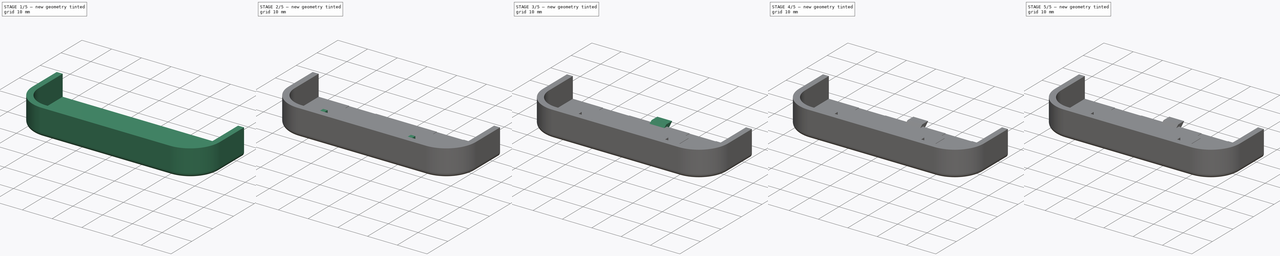
[diagram: build sequence overview — one tinted view per stage of 5, left to right]
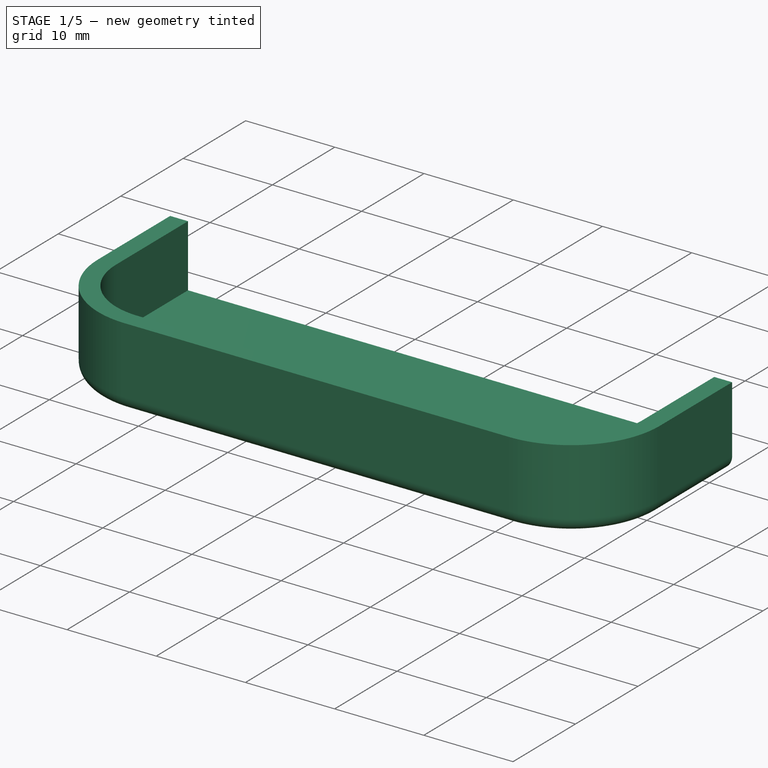
[diagram: stage 1 of 5 — iso view after this stage's code; geometry added in this stage tinted green]
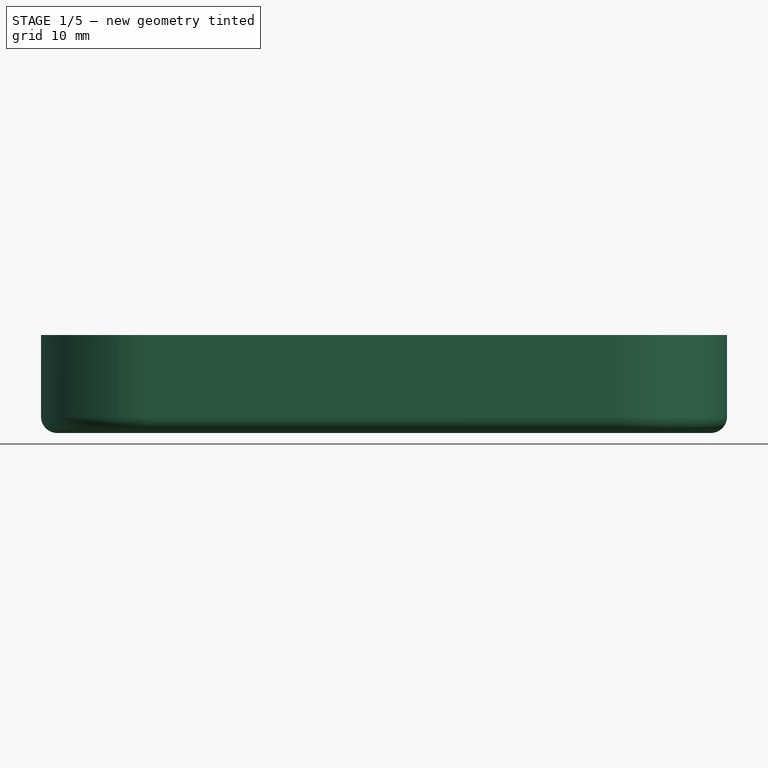
[diagram: stage 1 of 5 — front view after this stage's code; geometry added in this stage tinted green]
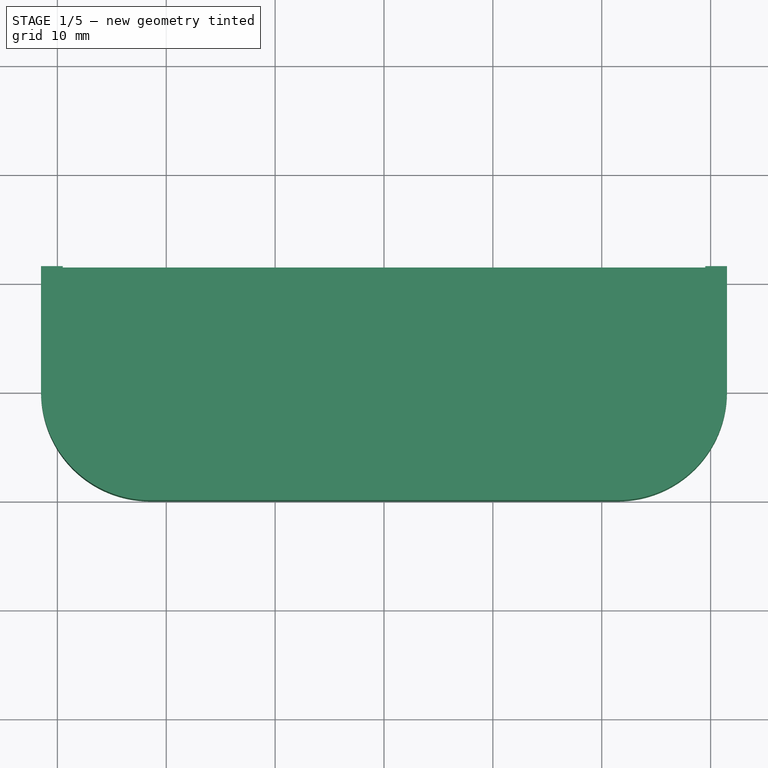
[diagram: stage 1 of 5 — top view after this stage's code; geometry added in this stage tinted green]
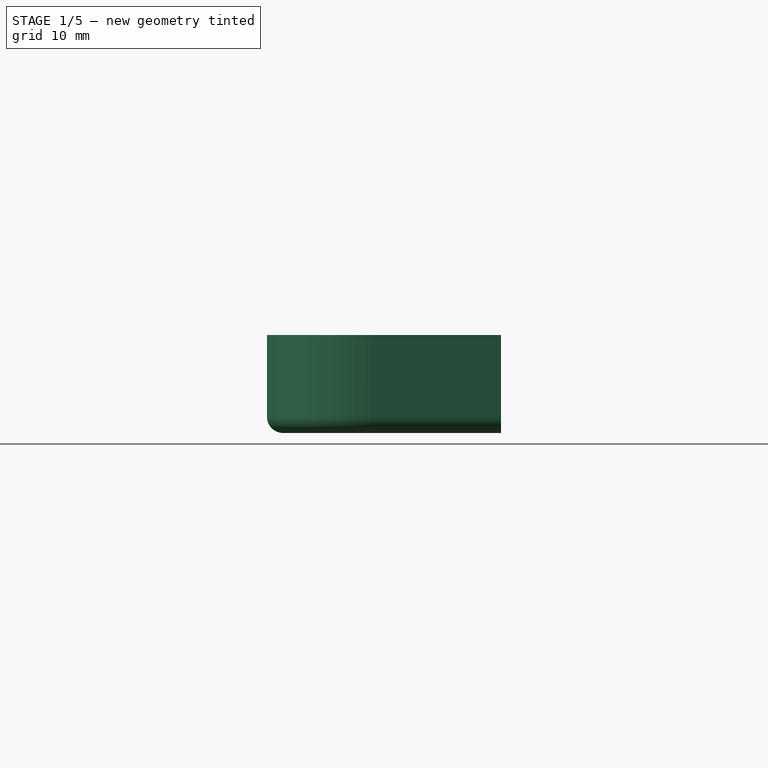
[diagram: stage 1 of 5 — right view after this stage's code; geometry added in this stage tinted green]
FCSTD DOCUMENT  (FreeCAD 0.19.4R1_voidlinux)
Label: back_lid
License: All rights reserved
LicenseURL: http://en.wikipedia.org/wiki/All_rights_reserved
objects: Sketcher::SketchObject×11, PartDesign::Pad×6, PartDesign::Pocket×4, PartDesign::Fillet×4, PartDesign::Point×2, PartDesign::Mirrored×1, Part::Part2DObjectPython×1, Part::Extrusion×1, PartDesign::LinearPattern×1, PartDesign::Body×1, PartDesign::CoordinateSystem×1, App::Part×1
note: 47 computed .brp shape members not serialized (recipe doc carries the construction recipe); baked Part::Feature solids carry a one-line shape summary decoded from their .brp

FEATURE [Sketcher::SketchObject] Sketch
  FullyConstrained = true
  MapMode = 5
  Support = -> [XY_Plane]
  sketch-geometry (6):
    g0: LineSegment StartX=-31.5 StartY=21.5 StartZ=0 EndX=-31.5 EndY=10 EndZ=0
    g1: LineSegment StartX=-21.5 StartY=0 StartZ=0 EndX=21.5 EndY=0 EndZ=0
    g2: LineSegment StartX=31.5 StartY=10 StartZ=0 EndX=31.5 EndY=21.5 EndZ=0
    g3: ArcOfCircle CenterX=-21.5 CenterY=10 CenterZ=0 NormalX=0 NormalY=0 NormalZ=1 AngleXU=0 Radius=10 StartAngle=3.14159 EndAngle=4.71239
    g4: ArcOfCircle CenterX=21.5 CenterY=10 CenterZ=0 NormalX=0 NormalY=0 NormalZ=1 AngleXU=0 Radius=10 StartAngle=4.71239 EndAngle=6.28319
    g5: LineSegment StartX=-31.5 StartY=21.5 StartZ=0 EndX=31.5 EndY=21.5 EndZ=0
  constraints (16):
    c: Vertical(g2)
    c: Tangent(g0,g3) = -1.5708
    c: Tangent(g1,g3) = -1.5708
    c: Tangent(g2,g4) = -1.5708
    c: Tangent(g1,g4) = -1.5708
    c: Equal(g2,g0)
    c: Equal(g4,g3)
    c: Vertical(g0)
    c: PointOnObject(g1,g-1)
    c: DistanceY(g1,g0) = 21.5
    c: Distance(g0,g0) = 11.5
    c: DistanceX(g0,g2) = 63
    c: Coincident(g5,g0)
    c: Coincident(g5,g2)
    c: Symmetric(g1,g1,g-2)
    c: Radius(g3) = 10
FEATURE [PartDesign::Pad] Pad  label="base"
  Direction = (1,1,1)
  Length = 9
  Length2 = 100
  Profile = -> Sketch
  Type = 0
FEATURE [Sketcher::SketchObject] Sketch001
  ExternalGeometry = -> [Pad]
  FullyConstrained = true
  MapMode = 5
  Placement = pos=(0,0,9) rot=(0,0,1;0rad)
  Support = -> [Pad]
  sketch-geometry (8):
    g0: LineSegment StartX=-29.5 StartY=21.5 StartZ=0 EndX=-29.5 EndY=10 EndZ=0
    g1: LineSegment StartX=29.5 StartY=21.5 StartZ=0 EndX=29.5 EndY=10 EndZ=0
    g2: LineSegment StartX=-21.5 StartY=2 StartZ=0 EndX=21.5 EndY=2 EndZ=0
    g3: LineSegment StartX=-31.5 StartY=21.5 StartZ=0 EndX=-29.5 EndY=21.5 EndZ=0
    g4: LineSegment StartX=-21.5 StartY=2 StartZ=0 EndX=-21.5 EndY=0 EndZ=0
    g5: ArcOfCircle CenterX=-21.5 CenterY=10 CenterZ=0 NormalX=0 NormalY=0 NormalZ=1 AngleXU=0 Radius=8 StartAngle=3.14159 EndAngle=4.71239
    g6: ArcOfCircle CenterX=21.5 CenterY=10 CenterZ=0 NormalX=0 NormalY=0 NormalZ=1 AngleXU=0 Radius=8 StartAngle=4.71239 EndAngle=6.28319
    g7: LineSegment StartX=-29.5 StartY=21.5 StartZ=0 EndX=29.5 EndY=21.5 EndZ=0
  constraints (20):
    c: PointOnObject(g0,g-3)
    c: Vertical(g0)
    c: PointOnObject(g1,g-3)
    c: Vertical(g1)
    c: Horizontal(g2)
    c: Equal(g0,g-4)
    c: Equal(g2,g-6)
    c: Equal(g1,g-8)
    c: Coincident(g3,g-4)
    c: Coincident(g3,g0)
    c: Distance(g3,g0) = 2
    c: Coincident(g4,g-6)
    c: Tangent(g2,g5) = -1.5708
    c: Tangent(g0,g5) = -1.5708
    c: Coincident(g2,g4)
    c: Tangent(g1,g6) = 1.5708
    c: Tangent(g2,g6) = -1.5708
    c: Coincident(g7,g0)
    c: Coincident(g7,g1)
    c: Vertical(g4)
FEATURE [PartDesign::Pocket] Pocket  label="walls"
  BaseFeature = -> Pad
  Length = 7
  Length2 = 100
  Profile = -> Sketch001
  Type = 0
FEATURE [PartDesign::Fillet] Fillet
  Base = -> Pocket [Edge3,Edge13,Edge15,Edge16,Edge17]
  BaseFeature = -> Pocket
  Radius = 1.5
  SupportTransform = false
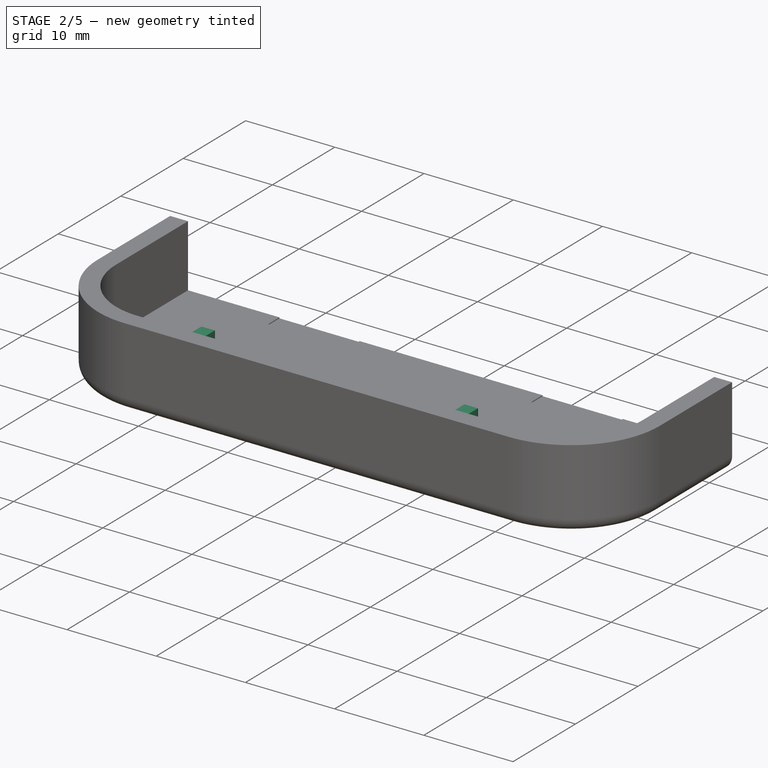
[diagram: stage 2 of 5 — iso view after this stage's code; geometry added in this stage tinted green]
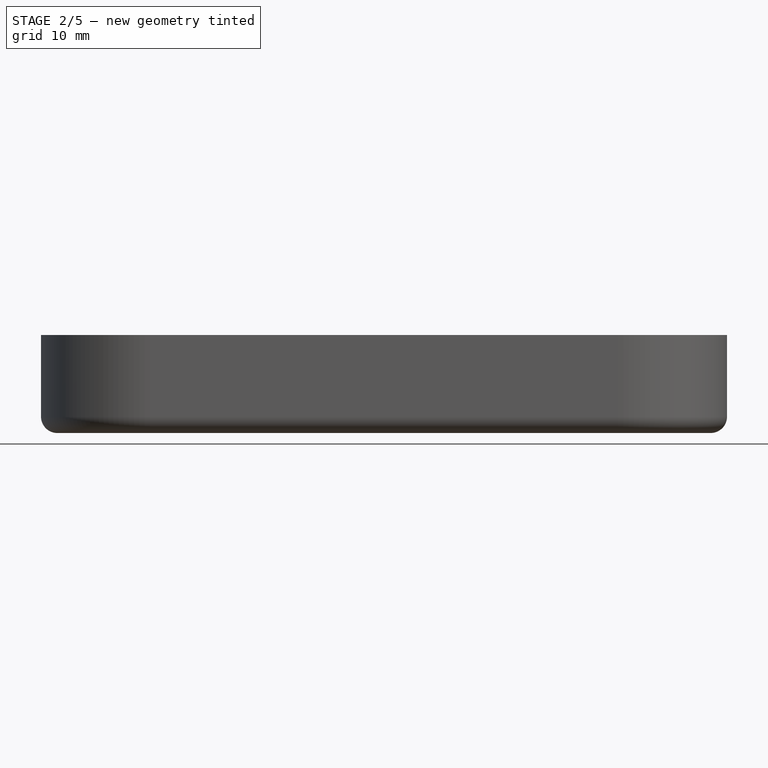
[diagram: stage 2 of 5 — front view after this stage's code; geometry added in this stage tinted green]
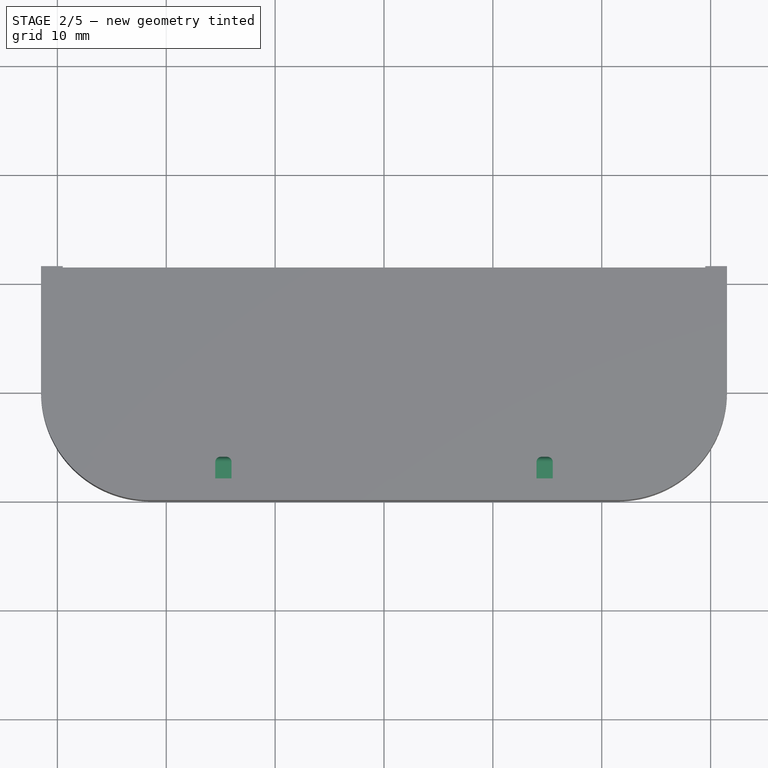
[diagram: stage 2 of 5 — top view after this stage's code; geometry added in this stage tinted green]
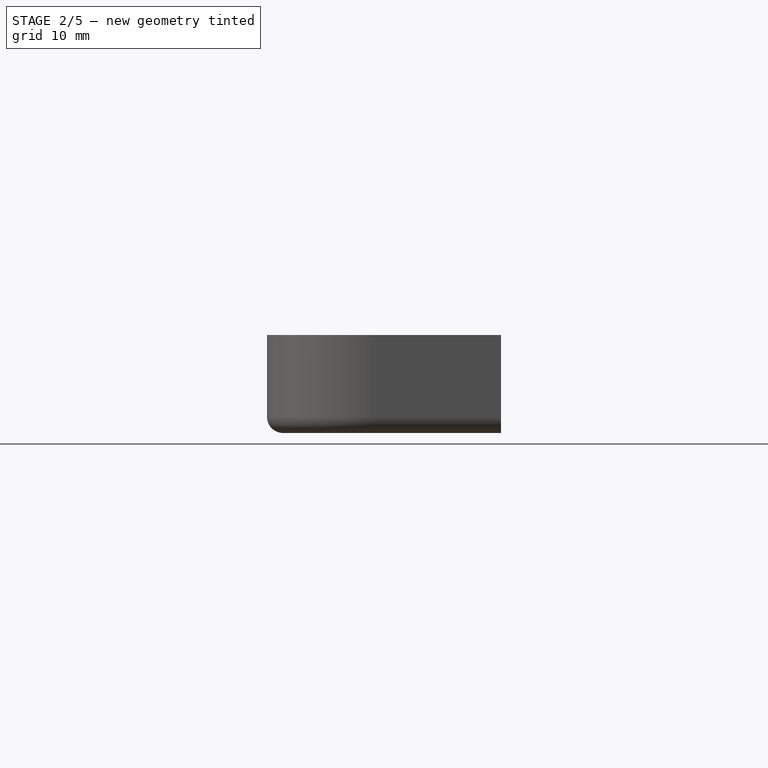
[diagram: stage 2 of 5 — right view after this stage's code; geometry added in this stage tinted green]
FEATURE [Sketcher::SketchObject] Sketch002
  ExternalGeometry = -> [Fillet]
  FullyConstrained = true
  MapMode = 5
  Placement = pos=(0,2,0) rot=(0,0.707107,0.707107;3.14159rad)
  Support = -> [Fillet]
  sketch-geometry (4):
    g0: LineSegment StartX=-15.5 StartY=7.4 StartZ=0 EndX=-14 EndY=7.4 EndZ=0
    g1: LineSegment StartX=-14 StartY=7.4 StartZ=0 EndX=-14 EndY=8.9 EndZ=0
    g2: LineSegment StartX=-14 StartY=8.9 StartZ=0 EndX=-15.5 EndY=8.9 EndZ=0
    g3: LineSegment StartX=-15.5 StartY=8.9 StartZ=0 EndX=-15.5 EndY=7.4 EndZ=0
  constraints (12):
    c: Coincident(g0,g1)
    c: Coincident(g1,g2)
    c: Coincident(g2,g3)
    c: Coincident(g3,g0)
    c: Horizontal(g0)
    c: Horizontal(g2)
    c: Vertical(g1)
    c: Vertical(g3)
    c: DistanceY(g2,g-3) = 0.1
    c: Distance(g0,g0) = 1.5
    c: Distance(g1,g0) = 1.5
    c: DistanceX(g-4,g2) = 16
FEATURE [PartDesign::Pad] Pad001  label="side_pin"
  BaseFeature = -> Fillet
  Direction = (1,1,1)
  Length = 2
  Length2 = 100
  Profile = -> Sketch002
  Type = 0
FEATURE [PartDesign::Fillet] Fillet001
  Base = -> Pad001 [Face24]
  BaseFeature = -> Pad001
  Radius = 0.5
  SupportTransform = false
FEATURE [PartDesign::Point] DatumPoint  label="side_pin_center"
  AttacherType = Attacher::AttachEnginePoint
  MapMode = 37
  Placement = pos=(14.75,4,7.15) rot=(0,0,1;0rad)
FEATURE [Sketcher::SketchObject] Sketch003
  ExternalGeometry = -> [DatumPoint,Fillet001]
  FullyConstrained = true
  MapMode = 5
  Placement = pos=(0,0,2) rot=(0,0,1;0rad)
  sketch-geometry (5):
    g0: LineSegment StartX=10.25 StartY=19.7 StartZ=0 EndX=19.25 EndY=19.7 EndZ=0
    g1: LineSegment StartX=19.25 StartY=19.7 StartZ=0 EndX=19.25 EndY=21.5 EndZ=0
    g2: LineSegment StartX=19.25 StartY=21.5 StartZ=0 EndX=10.25 EndY=21.5 EndZ=0
    g3: LineSegment StartX=10.25 StartY=21.5 StartZ=0 EndX=10.25 EndY=19.7 EndZ=0
    g4: LineSegment StartX=14.75 StartY=4 StartZ=0 EndX=14.75 EndY=21.5 EndZ=0
  constraints (14):
    c: Coincident(g0,g3)
    c: Coincident(g2,g3)
    c: Coincident(g0,g1)
    c: Coincident(g1,g2)
    c: Horizontal(g2)
    c: Horizontal(g0)
    c: Vertical(g1)
    c: Vertical(g3)
    c: Distance(g2,g1) = 9
    c: Distance(g1,g0) = 1.8
    c: PointOnObject(g4,g-4)
    c: Symmetric(g1,g2,g4)
    c: Coincident(g4,g-3)
    c: PointOnObject(g4,g2)
FEATURE [PartDesign::Pocket] Pocket001  label="slot"
  BaseFeature = -> Fillet001
  Length = 0.1
  Length2 = 100
  Profile = -> Sketch003
  Type = 0
FEATURE [PartDesign::Mirrored] Mirrored
  BaseFeature = -> Pocket001
  MirrorPlane = -> YZ_Plane
  Originals = -> [Pad001,Fillet001,Pocket001]
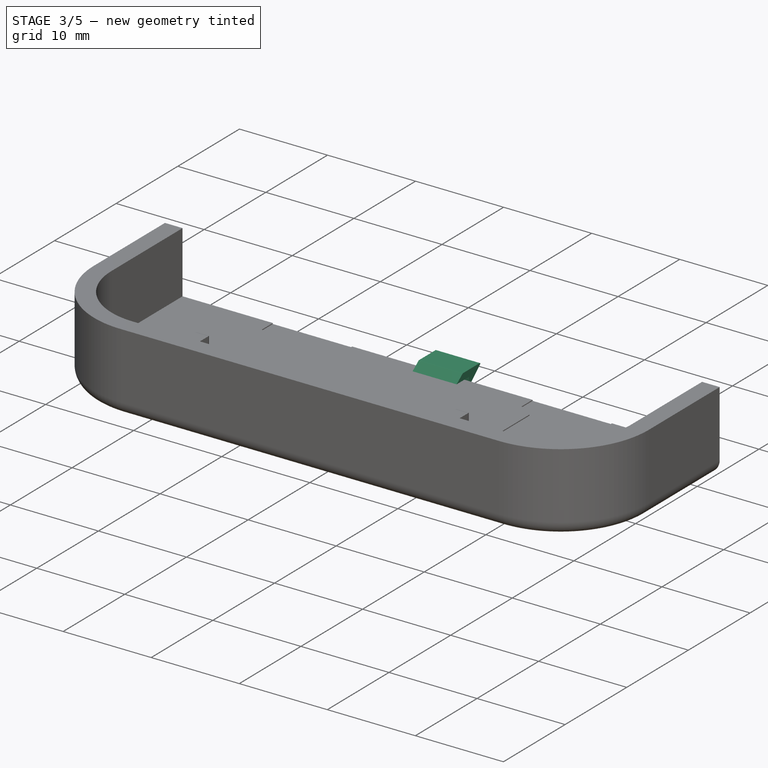
[diagram: stage 3 of 5 — iso view after this stage's code; geometry added in this stage tinted green]
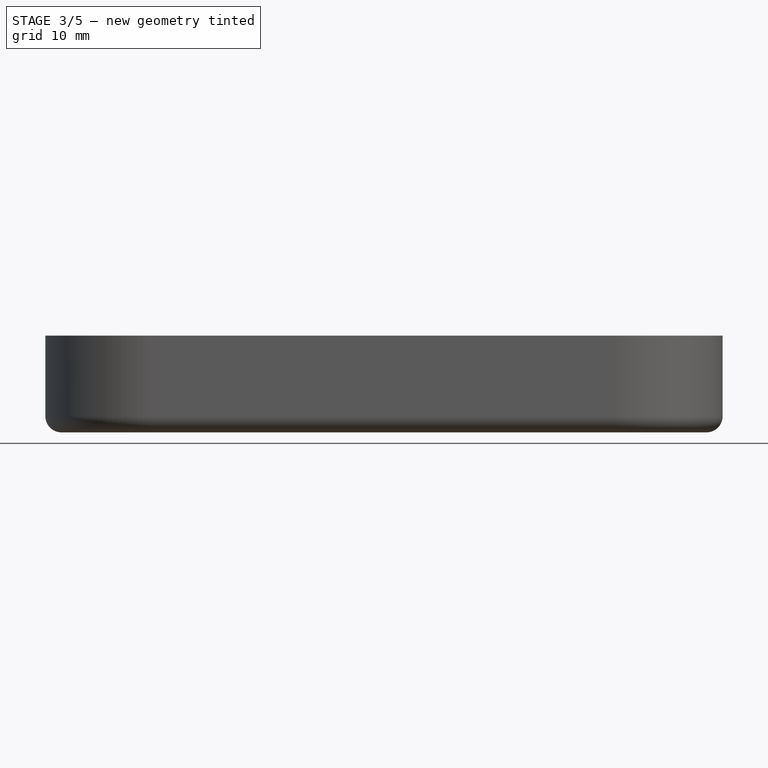
[diagram: stage 3 of 5 — front view after this stage's code; geometry added in this stage tinted green]
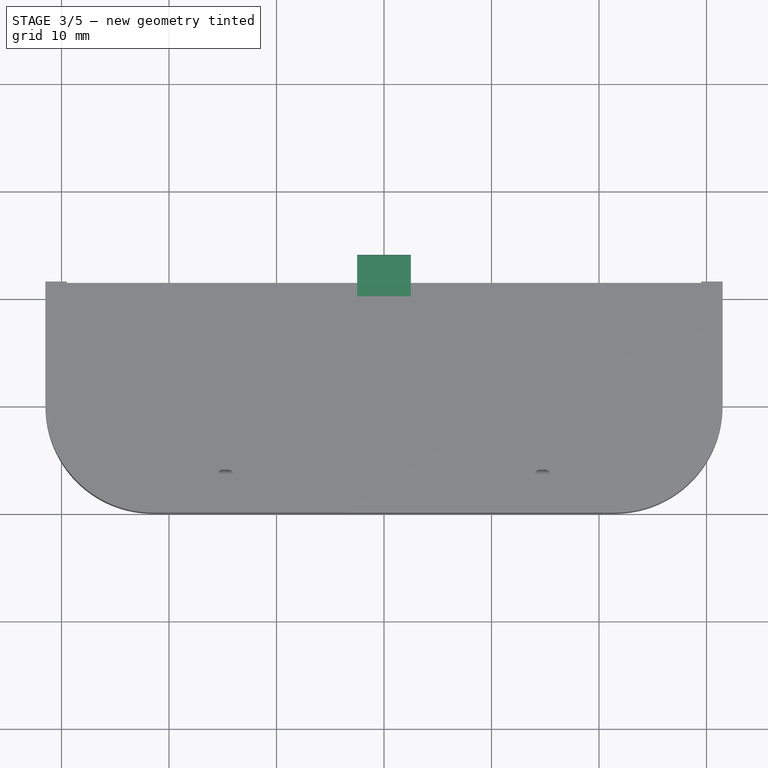
[diagram: stage 3 of 5 — top view after this stage's code; geometry added in this stage tinted green]
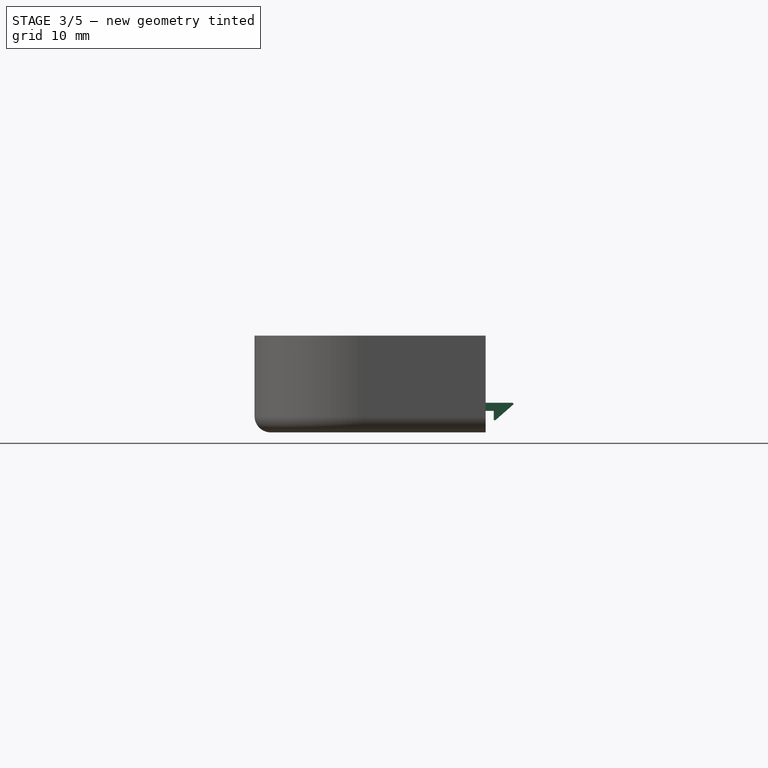
[diagram: stage 3 of 5 — right view after this stage's code; geometry added in this stage tinted green]
FEATURE [Sketcher::SketchObject] Sketch004
  ExternalGeometry = -> [Mirrored]
  FullyConstrained = true
  MapMode = 5
  Placement = pos=(0,0,2) rot=(0,0,1;0rad)
  Support = -> [Mirrored]
  sketch-geometry (4):
    g0: LineSegment StartX=-12 StartY=18.5 StartZ=0 EndX=12 EndY=18.5 EndZ=0
    g1: LineSegment StartX=12 StartY=18.5 StartZ=0 EndX=12 EndY=7.5 EndZ=0
    g2: LineSegment StartX=12 StartY=7.5 StartZ=0 EndX=-12 EndY=7.5 EndZ=0
    g3: LineSegment StartX=-12 StartY=7.5 StartZ=0 EndX=-12 EndY=18.5 EndZ=0
  constraints (11):
    c: Coincident(g0,g1)
    c: Coincident(g1,g2)
    c: Coincident(g2,g3)
    c: Coincident(g3,g0)
    c: Horizontal(g2)
    c: Vertical(g1)
    c: Vertical(g3)
    c: Symmetric(g0,g0,g-2)
    c: DistanceY(g0,g-3) = 3
    c: Distance(g0,g2) = 11
    c: Distance(g1,g2) = 24
FEATURE [PartDesign::Pad] Pad002  label="foam_pad_outline"
  BaseFeature = -> Mirrored
  Direction = (1,1,1)
  Length = 0.1
  Length2 = 100
  Profile = -> Sketch004
  Type = 0
FEATURE [PartDesign::Point] DatumPoint001  label="center_pin_edge"
  AttacherType = Attacher::AttachEnginePoint
  MapMode = 37
  Placement = pos=(0,21.5,2) rot=(0,0,1;0rad)
  Support = -> [Pocket]
FEATURE [Sketcher::SketchObject] Sketch005  label="center_pin"
  ExternalGeometry = -> [DatumPoint001]
  FullyConstrained = true
  MapMode = 5
  Placement = pos=(0,0,0) rot=(0.57735,0.57735,0.57735;2.0944rad)
  Support = -> [YZ_Plane]
  sketch-geometry (5):
    g0: LineSegment StartX=20.25 StartY=2 StartZ=0 EndX=21.25 EndY=2.75 EndZ=0
    g1: LineSegment StartX=21.25 StartY=2.75 StartZ=0 EndX=24.25 EndY=2.75 EndZ=0
    g2: LineSegment StartX=24.25 StartY=2.75 StartZ=0 EndX=22.25 EndY=1 EndZ=0
    g3: LineSegment StartX=22.25 StartY=1 StartZ=0 EndX=22.25 EndY=2 EndZ=0
    g4: LineSegment StartX=22.25 StartY=2 StartZ=0 EndX=20.25 EndY=2 EndZ=0
  constraints (15):
    c: Coincident(g1,g0)
    c: Horizontal(g1)
    c: Coincident(g2,g1)
    c: Coincident(g3,g2)
    c: Vertical(g3)
    c: Coincident(g4,g3)
    c: Coincident(g4,g0)
    c: DistanceX(g0,g1) = 4
    c: DistanceX(g0,g1) = 3
    c: DistanceY(g2,g1) = 1.75
    c: DistanceY(g0,g0) = 0.75
    c: DistanceX(g0,g2) = 2
    c: Horizontal(g4)
    c: PointOnObject(g-3,g4)
    c: Distance(g-3,g0) = 1.25
FEATURE [PartDesign::Pad] Pad003
  BaseFeature = -> Pad002
  Direction = (1,1,1)
  Length = 5
  Length2 = 100
  Midplane = true
  Profile = -> Sketch005
  Type = 0
FEATURE [PartDesign::Fillet] Fillet002
  Base = -> Pad003 [Edge141,Edge142,Edge104]
  BaseFeature = -> Pad003
  Radius = 0.1
  SupportTransform = false
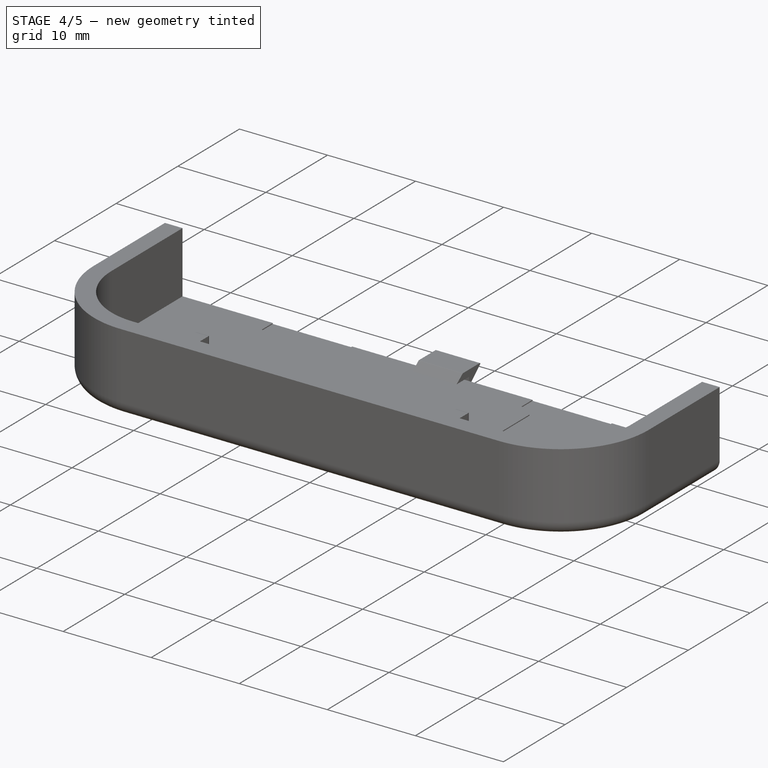
[diagram: stage 4 of 5 — iso view after this stage's code; geometry added in this stage tinted green]
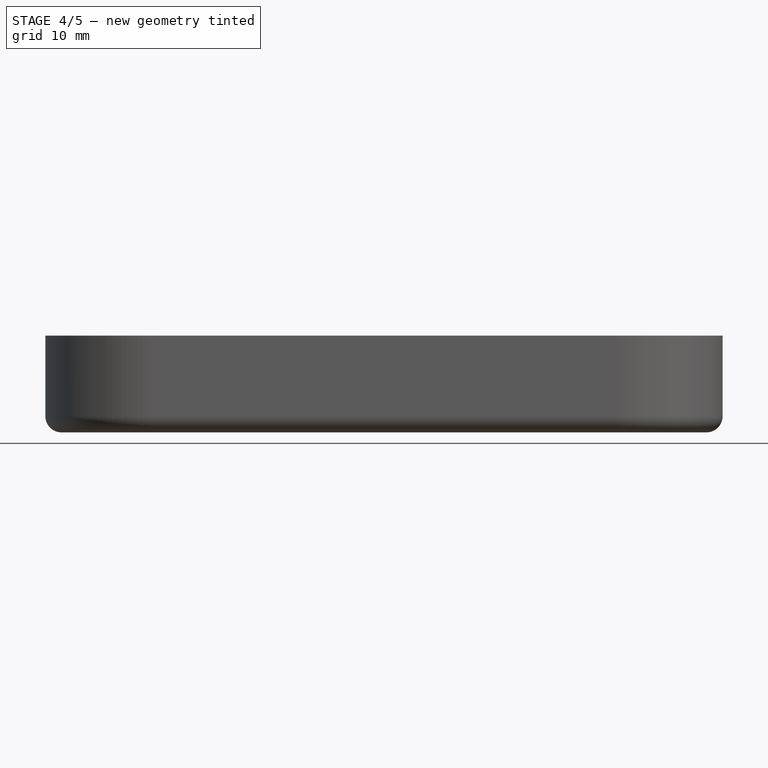
[diagram: stage 4 of 5 — front view after this stage's code; geometry added in this stage tinted green]
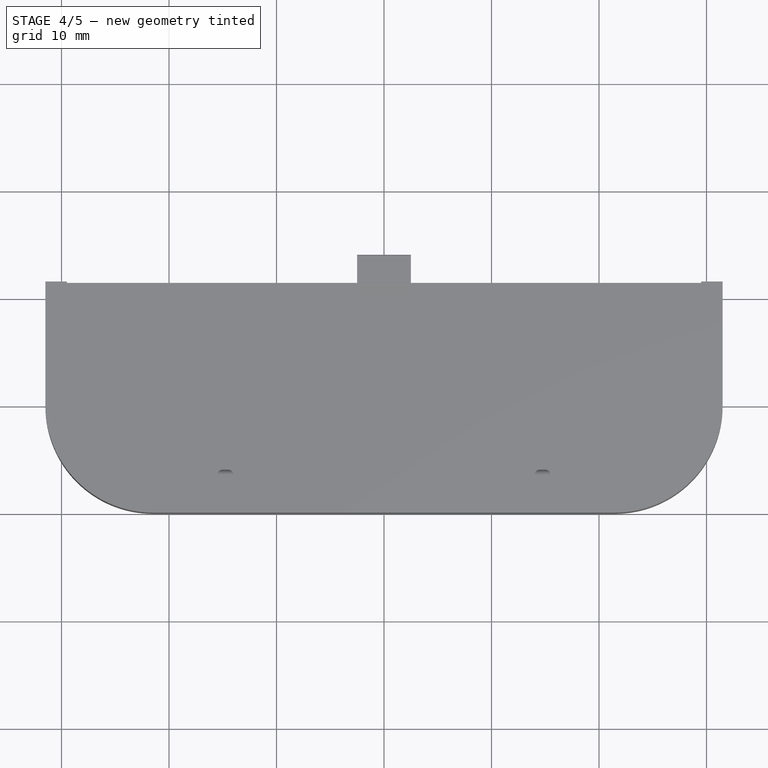
[diagram: stage 4 of 5 — top view after this stage's code; geometry added in this stage tinted green]
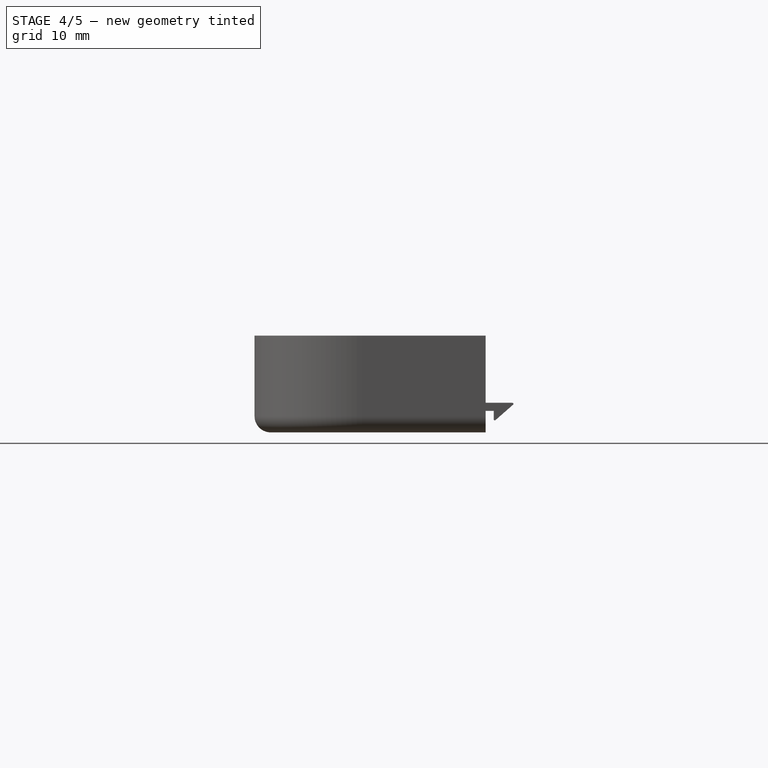
[diagram: stage 4 of 5 — right view after this stage's code; geometry added in this stage tinted green]
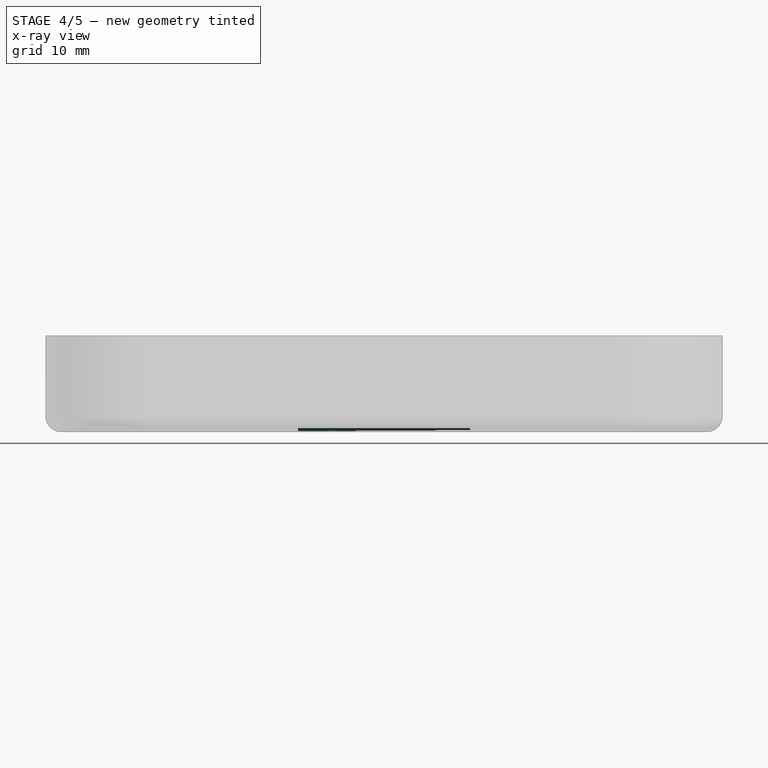
[diagram: stage 4 of 5 — x-ray composite at the front view; earlier geometry ghosted, this stage's added geometry solid]
FEATURE [Sketcher::SketchObject] Sketch006
  ExternalGeometry = -> [Fillet002]
  FullyConstrained = true
  MapMode = 5
  Placement = pos=(0,0,0) rot=(1,0,0;3.14159rad)
  Support = -> [Fillet002]
  sketch-geometry (8):
    g0: LineSegment StartX=-6.7 StartY=-4.5 StartZ=0 EndX=6.7 EndY=-4.5 EndZ=0
    g1: LineSegment StartX=8 StartY=-5.8 StartZ=0 EndX=8 EndY=-15.2 EndZ=0
    g2: LineSegment StartX=6.7 StartY=-16.5 StartZ=0 EndX=-6.7 EndY=-16.5 EndZ=0
    g3: LineSegment StartX=-8 StartY=-15.2 StartZ=0 EndX=-8 EndY=-5.8 EndZ=0
    g4: ArcOfCircle CenterX=6.7 CenterY=-5.8 CenterZ=0 NormalX=0 NormalY=0 NormalZ=1 AngleXU=0 Radius=1.3 StartAngle=0 EndAngle=1.5708
    g5: ArcOfCircle CenterX=-6.7 CenterY=-5.8 CenterZ=0 NormalX=0 NormalY=0 NormalZ=1 AngleXU=0 Radius=1.3 StartAngle=1.5708 EndAngle=3.14159
    g6: ArcOfCircle CenterX=-6.7 CenterY=-15.2 CenterZ=0 NormalX=0 NormalY=0 NormalZ=1 AngleXU=0 Radius=1.3 StartAngle=3.14159 EndAngle=4.71239
    g7: ArcOfCircle CenterX=6.7 CenterY=-15.2 CenterZ=0 NormalX=0 NormalY=0 NormalZ=1 AngleXU=0 Radius=1.3 StartAngle=4.71239 EndAngle=6.28319
  constraints (20):
    c: Horizontal(g0)
    c: Horizontal(g2)
    c: Vertical(g1)
    c: Vertical(g3)
    c: DistanceY(g-3,g-3) = 0
    c: Tangent(g1,g4) = 1.5708
    c: Tangent(g0,g4) = 1.5708
    c: Tangent(g3,g5) = 1.5708
    c: Tangent(g0,g5) = 1.5708
    c: Tangent(g2,g6) = 1.5708
    c: Tangent(g3,g6) = 1.5708
    c: Tangent(g2,g7) = 1.5708
    c: Tangent(g1,g7) = 1.5708
    c: DistanceX(g3,g1) = 16
    c: DistanceY(g2,g0) = 12
    c: DistanceY(g-3,g2) = 5
    c: Symmetric(g3,g1,g-2)
    c: Equal(g5,g7)
    c: Equal(g4,g7)
    c: Radius(g7) = 1.3
FEATURE [PartDesign::Pocket] Pocket002
  BaseFeature = -> Fillet002
  Length = 0.2
  Length2 = 100
  Profile = -> Sketch006
  Type = 0
FEATURE [Part::Part2DObjectPython] ShapeString  label="OPEN_string"  # Draft 2D object (typed FeaturePython)
  FontFile = <path>
  Placement = pos=(6.5,5,0.2) rot=(0,1,0;3.14159rad)
  Size = 2.35
  String = OPEN
  Tracking = 0.85
FEATURE [Sketcher::SketchObject] Sketch007
  ExternalGeometry = -> [Pocket002]
  FullyConstrained = true
  MapMode = 5
  Placement = pos=(0,0,0.2) rot=(1,0,0;3.14159rad)
  Support = -> [Pocket002]
  sketch-geometry (6):
    g0: LineSegment StartX=8 StartY=-15.2 StartZ=0 EndX=8 EndY=-9.5 EndZ=0
    g1: LineSegment StartX=-8 StartY=-15.2 StartZ=0 EndX=-8 EndY=-9.5 EndZ=0
    g2: LineSegment StartX=-6.7 StartY=-16.5 StartZ=0 EndX=6.7 EndY=-16.5 EndZ=0
    g3: ArcOfCircle CenterX=-6.7 CenterY=-15.2 CenterZ=0 NormalX=0 NormalY=0 NormalZ=1 AngleXU=0 Radius=1.3 StartAngle=3.14159 EndAngle=4.71239
    g4: ArcOfCircle CenterX=6.7 CenterY=-15.2 CenterZ=0 NormalX=0 NormalY=0 NormalZ=1 AngleXU=0 Radius=1.3 StartAngle=4.71239 EndAngle=6.28319
    g5: LineSegment StartX=-8 StartY=-9.5 StartZ=0 EndX=8 EndY=-9.5 EndZ=0
  constraints (12):
    c: PointOnObject(g0,g-7)
    c: Tangent(g1,g3) = 1.5708
    c: Tangent(g2,g3) = -1.5708
    c: Tangent(g0,g4) = -1.5708
    c: Tangent(g2,g4) = -1.5708
    c: Coincident(g0,g-7)
    c: Coincident(g2,g-5)
    c: Symmetric(g1,g0,g-2)
    c: DistanceY(g1,g-3) = 5
    c: Coincident(g1,g-8)
    c: Coincident(g5,g1)
    c: Coincident(g5,g0)
FEATURE [PartDesign::Pocket] Pocket003
  BaseFeature = -> Pocket002
  Length = 0.2
  Length2 = 100
  Profile = -> Sketch007
  Type = 0
FEATURE [Sketcher::SketchObject] Sketch009
  ExternalGeometry = -> [Pocket003]
  FullyConstrained = true
  MapMode = 5
  Placement = pos=(0,0,0.2) rot=(1,0,0;3.14159rad)
  Support = -> [Pocket003]
  sketch-geometry (8):
    g0: LineSegment StartX=-4.56 StartY=-8.5 StartZ=0 EndX=-6.06 EndY=-8.5 EndZ=0
    g1: LineSegment StartX=-6.06 StartY=-8.5 StartZ=0 EndX=-6.06 EndY=-7 EndZ=0
    g2: LineSegment StartX=-6.06 StartY=-7 StartZ=0 EndX=-6.8 EndY=-7 EndZ=0
    g3: LineSegment StartX=-6.8 StartY=-7 StartZ=0 EndX=-5.18 EndY=-5.3 EndZ=0
    g4: LineSegment StartX=-5.18 StartY=-5.3 StartZ=0 EndX=-4.02 EndY=-7 EndZ=0
    g5: LineSegment StartX=-4.02 StartY=-7 StartZ=0 EndX=-4.56 EndY=-7 EndZ=0
    g6: LineSegment StartX=-4.56 StartY=-7 StartZ=0 EndX=-4.56 EndY=-8.5 EndZ=0
    g7: LineSegment StartX=-5.18 StartY=-5.3 StartZ=0 EndX=-5.18 EndY=-8.5 EndZ=0
  constraints (24):
    c: Horizontal(g0)
    c: Coincident(g1,g0)
    c: Vertical(g1)
    c: Coincident(g2,g1)
    c: Horizontal(g2)
    c: Coincident(g3,g2)
    c: Coincident(g4,g3)
    c: Coincident(g5,g4)
    c: Horizontal(g5)
    c: Coincident(g6,g5)
    c: Coincident(g6,g0)
    c: Vertical(g6)
    c: Equal(g1,g6)
    c: DistanceX(g-3,g2) = 1.2
    c: DistanceY(g3,g-4) = 0.8
    c: Distance(g0,g0) = 1.5
    c: DistanceY(g-5,g0) = 1
    c: Distance(g0,g5) = 1.5
    c: Distance(g1,g2) = 0.74
    c: Coincident(g7,g3)
    c: PointOnObject(g7,g0)
    c: Vertical(g7)
    c: Distance(g0,g7) = 0.62
    c: Distance(g4,g5) = 0.54
FEATURE [PartDesign::Pad] Pad004
  BaseFeature = -> Pocket003
  Direction = (1,1,1)
  Length = 0.1
  Length2 = 100
  Profile = -> Sketch009
  Type = 0
FEATURE [Sketcher::SketchObject] Sketch010
  ExternalGeometry = -> [Pad004]
  FullyConstrained = true
  MapMode = 5
  Placement = pos=(8,9.5462e-12,0) rot=(0.57735,-0.57735,-0.57735;2.0944rad)
  Support = -> [Pad004]
  sketch-geometry (3):
    g0: LineSegment StartX=-10.5 StartY=0.1 StartZ=0 EndX=-9.5 EndY=0.4 EndZ=0
    g1: LineSegment StartX=-10.5 StartY=0.1 StartZ=0 EndX=-10.5 EndY=0.4 EndZ=0
    g2: LineSegment StartX=-10.5 StartY=0.4 StartZ=0 EndX=-9.5 EndY=0.4 EndZ=0
  constraints (8):
    c: Coincident(g1,g0)
    c: Vertical(g1)
    c: Coincident(g2,g1)
    c: Coincident(g2,g0)
    c: Horizontal(g2)
    c: Coincident(g-3,g0)
    c: Distance(g1,g0) = 1
    c: Distance(g1,g0) = 0.3
FEATURE [PartDesign::Pad] Pad005
  BaseFeature = -> Pad004
  Direction = (1,1,1)
  Length = 10
  Length2 = 100
  Profile = -> Sketch010
  Type = 2
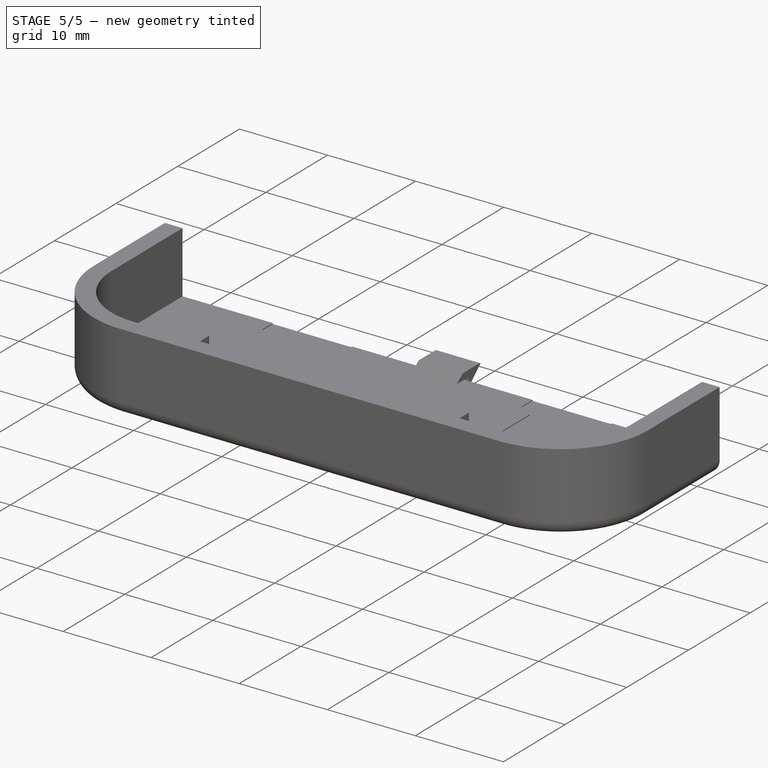
[diagram: stage 5 of 5 — iso view after this stage's code; geometry added in this stage tinted green]
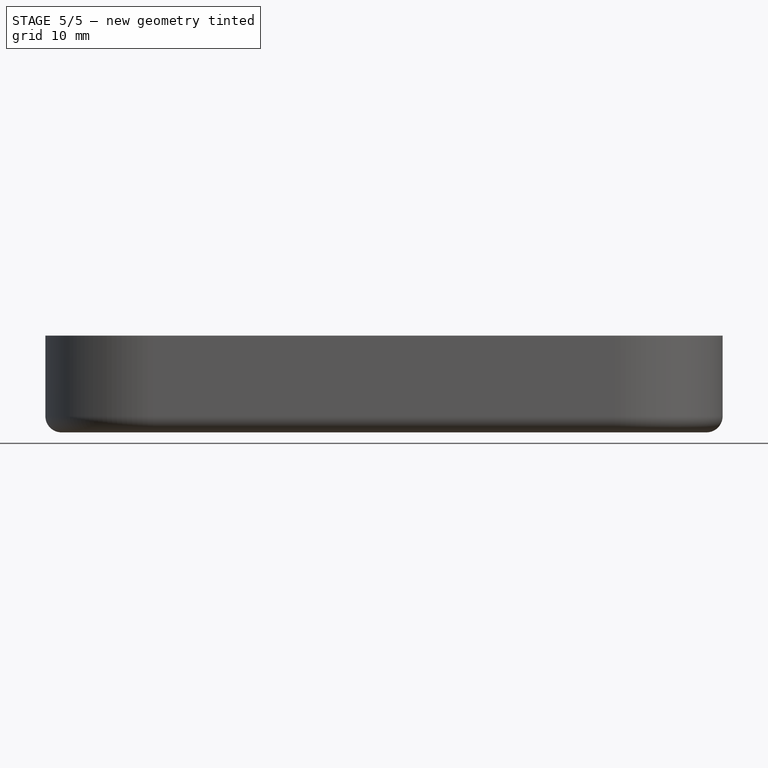
[diagram: stage 5 of 5 — front view after this stage's code; geometry added in this stage tinted green]
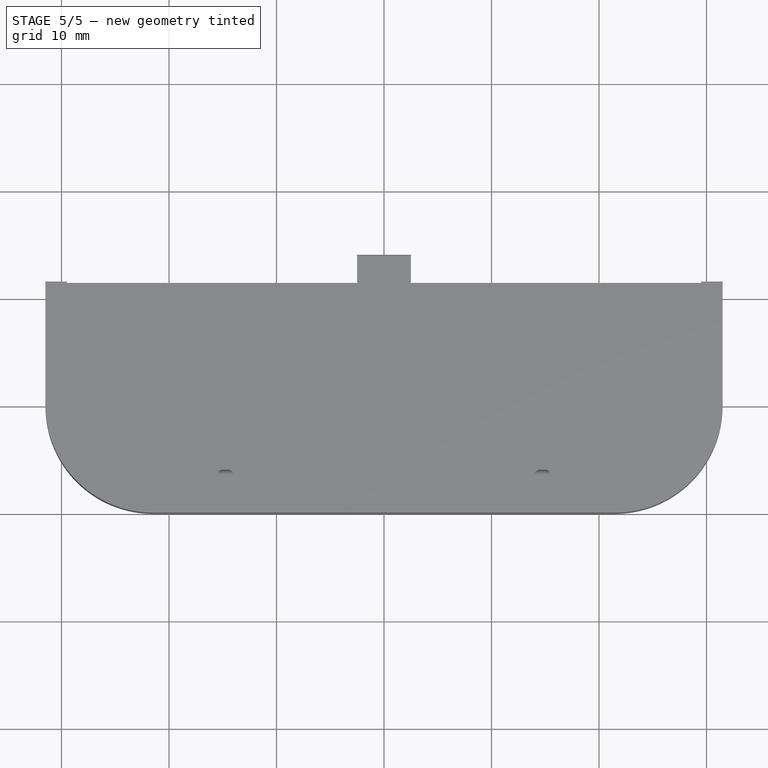
[diagram: stage 5 of 5 — top view after this stage's code; geometry added in this stage tinted green]
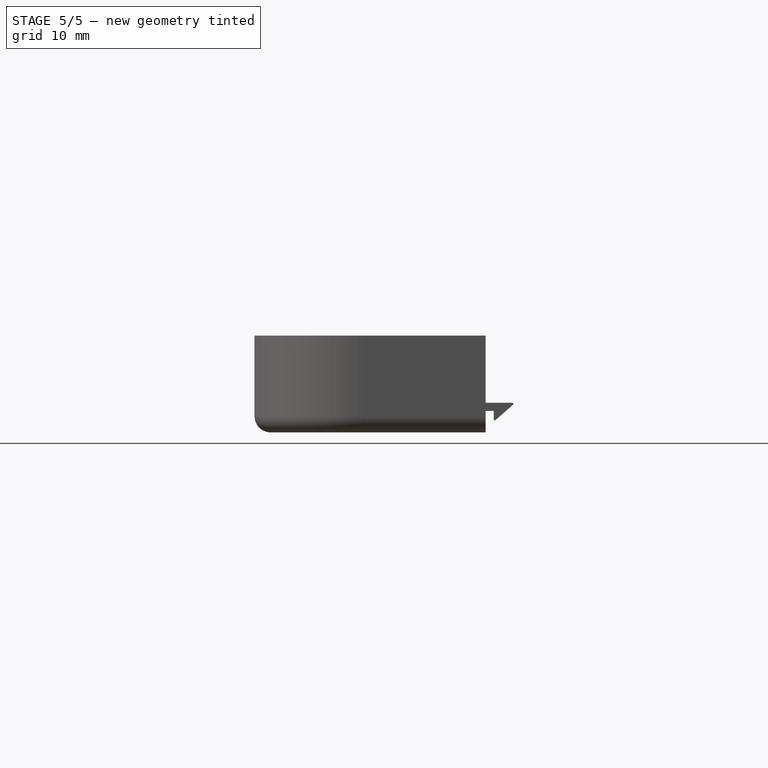
[diagram: stage 5 of 5 — right view after this stage's code; geometry added in this stage tinted green]
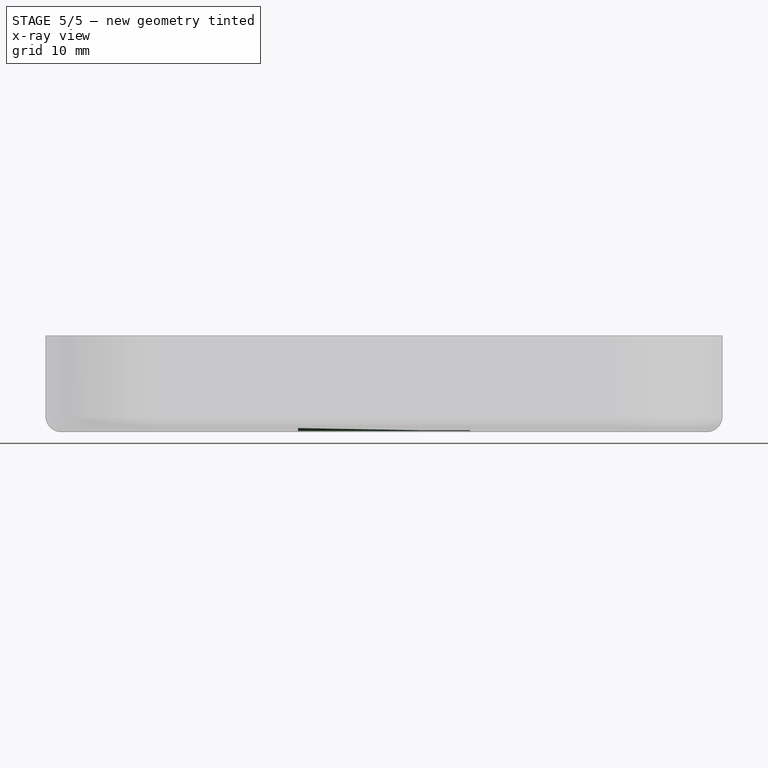
[diagram: stage 5 of 5 — x-ray composite at the front view; earlier geometry ghosted, this stage's added geometry solid]
FEATURE [Sketcher::SketchObject] Sketch008  label="OPEN_outline"
  ExternalGeometry = -> [Pocket003]
  FullyConstrained = true
  MapMode = 5
  Placement = pos=(0,0,0.2) rot=(1,0,0;3.14159rad)
  Support = -> [Pocket003]
  sketch-geometry (4):
    g0: LineSegment StartX=-2.5 StartY=-7.5 StartZ=0 EndX=6.5 EndY=-7.5 EndZ=0
    g1: LineSegment StartX=6.5 StartY=-7.5 StartZ=0 EndX=6.5 EndY=-5.5 EndZ=0
    g2: LineSegment StartX=6.5 StartY=-5.5 StartZ=0 EndX=-2.5 EndY=-5.5 EndZ=0
    g3: LineSegment StartX=-2.5 StartY=-5.5 StartZ=0 EndX=-2.5 EndY=-7.5 EndZ=0
  constraints (12):
    c: Coincident(g0,g1)
    c: Coincident(g1,g2)
    c: Coincident(g2,g3)
    c: Coincident(g3,g0)
    c: Horizontal(g0)
    c: Horizontal(g2)
    c: Vertical(g1)
    c: Vertical(g3)
    c: DistanceX(g1,g-3) = 1.5
    c: DistanceY(g1,g-4) = 1
    c: Distance(g1) = 2
    c: Distance(g2) = 9
FEATURE [Part::Extrusion] Extrude  label="OPEN_mark"
  Base = -> ShapeString
  Dir = (0,0,-1)
  DirMode = 2
  FaceMakerClass = Part::FaceMakerBullseye
  LengthFwd = 0.1
  LengthRev = 0
  Solid = true
  Symmetric = false
FEATURE [PartDesign::Fillet] Fillet003
  Base = -> Pad005 [Edge197]
  BaseFeature = -> Pad005
  Radius = 0.05
  SupportTransform = false
FEATURE [PartDesign::LinearPattern] LinearPattern
  BaseFeature = -> Fillet003
  Direction = -> Y_Axis
  Length = 6
  Occurrences = 7
  Originals = -> [Pad005,Fillet003]
FEATURE [PartDesign::Body] Body
  Group = -> [Sketch,Pad,Sketch001,Pocket,Fillet,Sketch002,Pad001,Fillet001,DatumPoint,Sketch003,Pocket001,Mirrored,Sketch004,Pad002,Sketch005,DatumPoint001,Pad003,Fillet002,Sketch006,Pocket002,Sketch007,Pocket003,Sketch008,Sketch009,Pad004,Sketch010,Pad005,Fillet003,LinearPattern]
  Origin = -> Origin
  Tip = -> LinearPattern
FEATURE [PartDesign::CoordinateSystem] LCS_foam_attach
  AttacherType = Attacher::AttachEngine3D
  MapMode = 45
  Placement = pos=(0,13,2.1) rot=(0,0,1;1.5708rad)
  Support = -> [LinearPattern]
FEATURE [App::Part] Part  label="back_lid"
  Group = -> [ShapeString,Extrude,Body,LCS_foam_attach]
  Origin = -> Origin001
note: 1 file-system path scrubbed to <path> (originals preserved in the JSON sidecar)
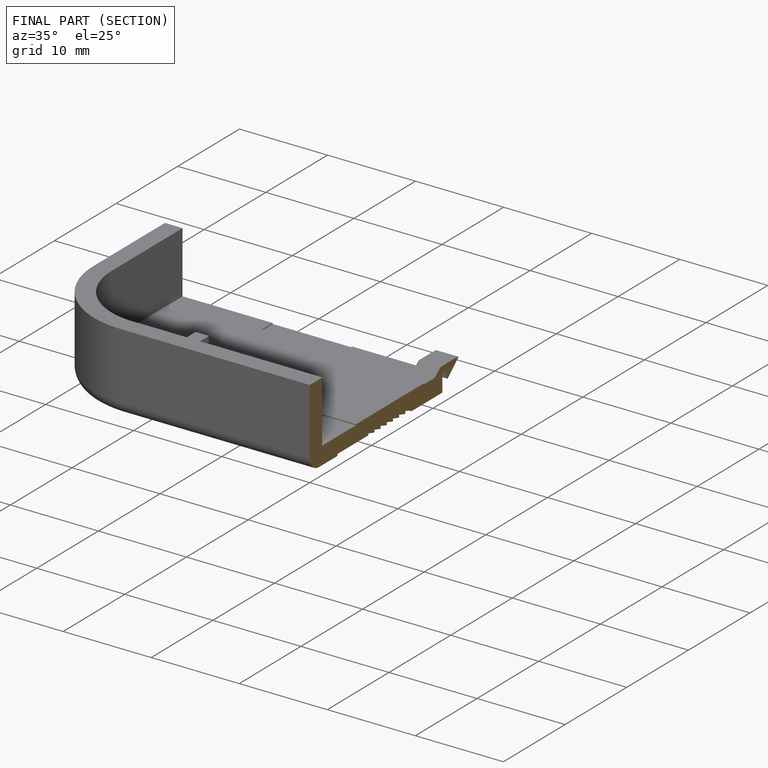
[diagram: finished part — half-section view (interior)]
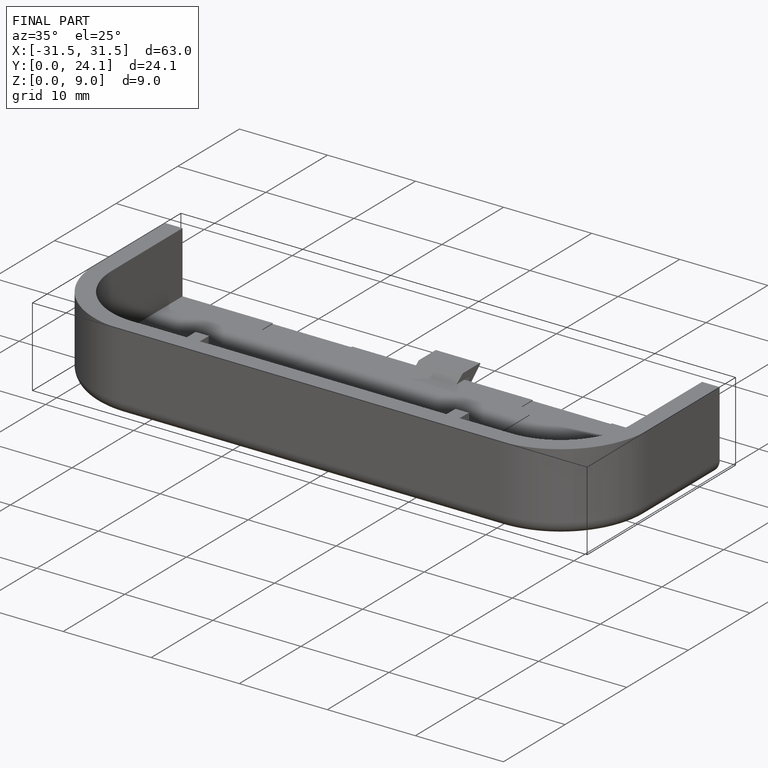
[diagram: finished part — iso view with bounding-box wireframe]
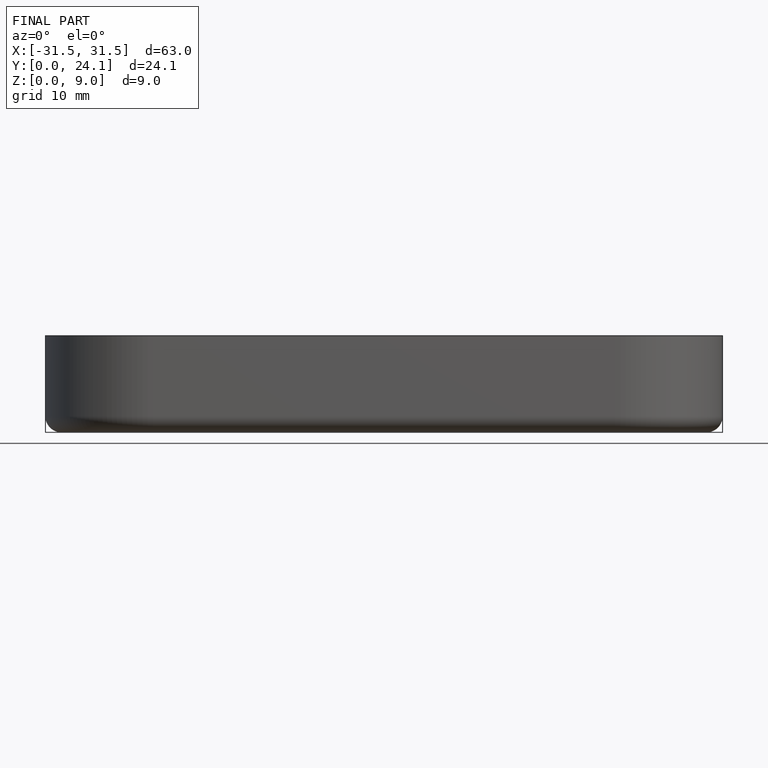
[diagram: finished part — front view with bounding-box wireframe]
